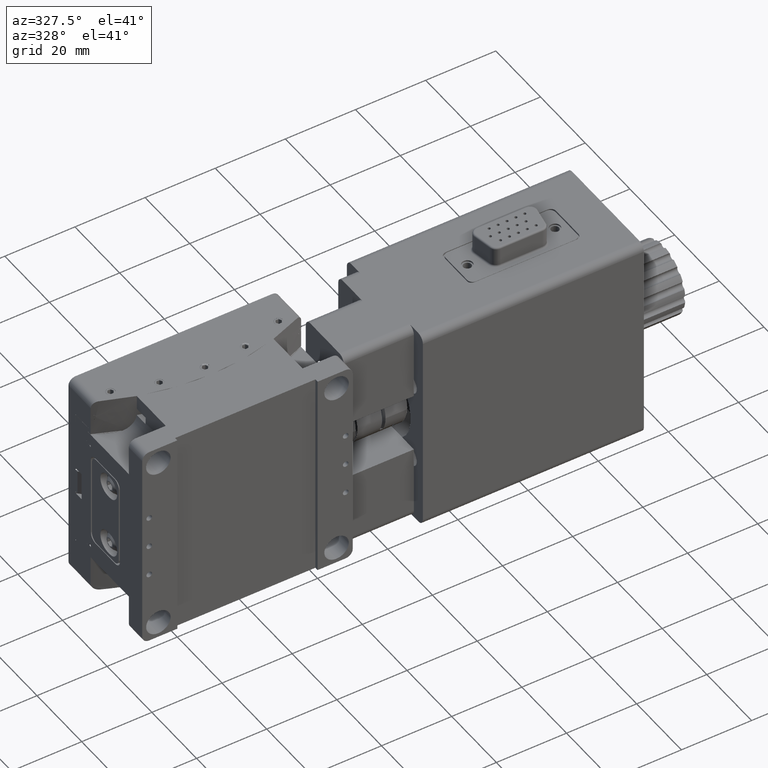
[diagram: clean part render]
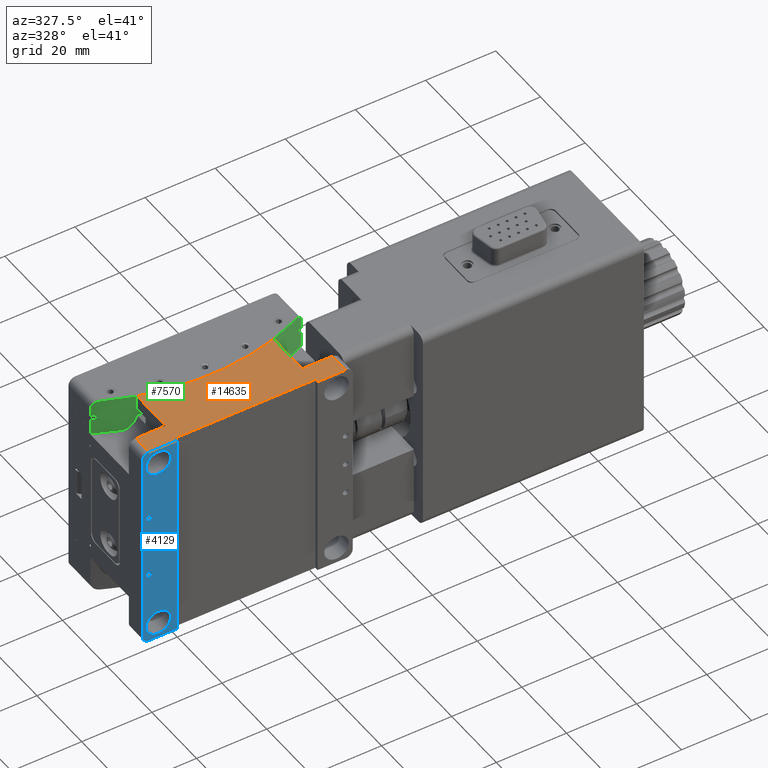
[diagram: same view with three faces highlighted in distinct colors, each labeled with its STEP entity id]
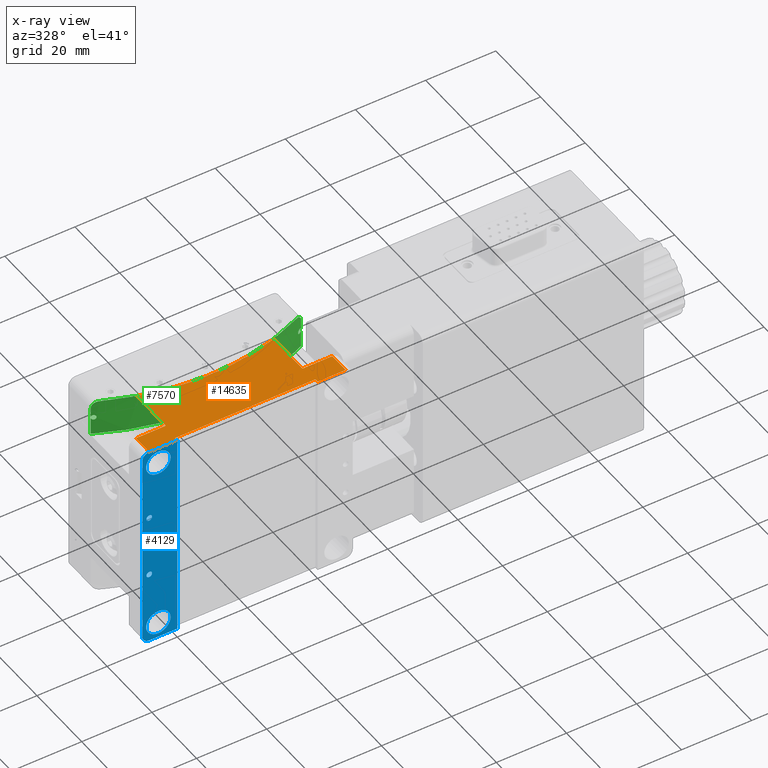
[diagram: x-ray of the same camera — body ghosted, the three highlighted faces saturated]
A machine part, auxiliary view with three faces highlighted in distinct colors.
The next image is the same camera in x-ray (body ghosted, the three faces saturated) — at least one of them is partly hidden behind the body in this view.
Their STEP definitions:

[orange] entity #14635 — the highlighted planar face has unit normal (-0, 0, -1).
#382 = LINE ( 'NONE', #12042, #2610 ) ;
#469 = CARTESIAN_POINT ( 'NONE',  ( -19.49999999999997900, 18.90046802042932900, 30.00000000000000700 ) ) ;
#707 = EDGE_CURVE ( 'NONE', #5361, #27594, #30916, .T. ) ;
#884 = CARTESIAN_POINT ( 'NONE',  ( 19.50000000000001400, 18.90046802042934400, 30.00000000000000700 ) ) ;
#953 = VECTOR ( 'NONE', #6119, 1000.000000000000000 ) ;
#972 = ORIENTED_EDGE ( 'NONE', *, *, #18743, .T. ) ;
#1050 = EDGE_CURVE ( 'NONE', #21466, #31952, #6455, .T. ) ;
#1525 = AXIS2_PLACEMENT_3D ( 'NONE', #8995, #35520, #35010 ) ;
#2416 = VERTEX_POINT ( 'NONE', #20171 ) ;
#2566 = VERTEX_POINT ( 'NONE', #7130 ) ;
#2610 = VECTOR ( 'NONE', #3528, 1000.000000000000000 ) ;
#2673 = CARTESIAN_POINT ( 'NONE',  ( 27.99999999999999600, 6.000000000000001800, 30.00000000000000000 ) ) ;
#3528 = DIRECTION ( 'NONE',  ( 1.000000000000000000, 0.0000000000000000000, -1.156482317317871500E-016 ) ) ;
#4584 = ORIENTED_EDGE ( 'NONE', *, *, #28121, .T. ) ;
#5106 = CARTESIAN_POINT ( 'NONE',  ( -19.99999999999999600, 1.000000000000000000, 30.00000000000000700 ) ) ;
#5361 = VERTEX_POINT ( 'NONE', #8591 ) ;
#5485 = DIRECTION ( 'NONE',  ( -0.0000000000000000000, -1.000000000000000000, -0.0000000000000000000 ) ) ;
#5603 = VERTEX_POINT ( 'NONE', #30534 ) ;
#5703 = VECTOR ( 'NONE', #27059, 1000.000000000000000 ) ;
#6067 = PLANE ( 'NONE',  #1525 ) ;
#6119 = DIRECTION ( 'NONE',  ( 1.000000000000000000, 0.0000000000000000000, -1.156482317317871500E-016 ) ) ;
#6455 = LINE ( 'NONE', #14446, #20051 ) ;
#6460 = LINE ( 'NONE', #28110, #36331 ) ;
#7130 = CARTESIAN_POINT ( 'NONE',  ( 19.99999999999999600, 0.0000000000000000000, 30.00000000000000700 ) ) ;
#7200 = FACE_OUTER_BOUND ( 'NONE', #26886, .T. ) ;
#7474 = ORIENTED_EDGE ( 'NONE', *, *, #34119, .F. ) ;
#8184 = ORIENTED_EDGE ( 'NONE', *, *, #36823, .F. ) ;
#8591 = CARTESIAN_POINT ( 'NONE',  ( 28.00000000000000000, 0.0000000000000000000, 30.00000000000000000 ) ) ;
#8995 = CARTESIAN_POINT ( 'NONE',  ( -29.99999999999999600, 33.00000000000000000, 30.00000000000000700 ) ) ;
#9443 = CARTESIAN_POINT ( 'NONE',  ( -29.99999999999999600, 6.000000000000001800, 30.00000000000000700 ) ) ;
#9775 = CARTESIAN_POINT ( 'NONE',  ( -19.49999999999999600, 33.00000000000000000, 30.00000000000000700 ) ) ;
#9817 = LINE ( 'NONE', #29186, #5703 ) ;
#10195 = VERTEX_POINT ( 'NONE', #34248 ) ;
#10698 = DIRECTION ( 'NONE',  ( -1.000000000000000000, 0.0000000000000000000, 1.156482317317871500E-016 ) ) ;
#10785 = LINE ( 'NONE', #34543, #21632 ) ;
#10959 = EDGE_CURVE ( 'NONE', #13818, #29576, #6460, .T. ) ;
#12042 = CARTESIAN_POINT ( 'NONE',  ( -29.99999999999999600, 0.0000000000000000000, 30.00000000000000700 ) ) ;
#13184 = ORIENTED_EDGE ( 'NONE', *, *, #24931, .T. ) ;
#13818 = VERTEX_POINT ( 'NONE', #20672 ) ;
#14218 = DIRECTION ( 'NONE',  ( 1.000000000000000000, 0.0000000000000000000, -1.156482317317871500E-016 ) ) ;
#14446 = CARTESIAN_POINT ( 'NONE',  ( 19.50000000000000000, 33.00000000000000000, 30.00000000000000000 ) ) ;
#14621 = VECTOR ( 'NONE', #32304, 1000.000000000000000 ) ;
#14635 = ADVANCED_FACE ( 'NONE', ( #7200 ), #6067, .F. ) ;
#14660 = ORIENTED_EDGE ( 'NONE', *, *, #24333, .T. ) ;
#14716 = EDGE_CURVE ( 'NONE', #2416, #5603, #382, .T. ) ;
#15515 = CARTESIAN_POINT ( 'NONE',  ( -29.99999999999999600, 1.000000000000000900, 30.00000000000000700 ) ) ;
#15970 = DIRECTION ( 'NONE',  ( 0.0000000000000000000, 1.000000000000000000, 0.0000000000000000000 ) ) ;
#16408 = CARTESIAN_POINT ( 'NONE',  ( -19.99999999999999600, 1.000000000000000000, 30.00000000000000700 ) ) ;
#17018 = CARTESIAN_POINT ( 'NONE',  ( 19.99999999999999600, 1.000000000000000000, 30.00000000000000700 ) ) ;
#17088 = VECTOR ( 'NONE', #5485, 1000.000000000000000 ) ;
#17327 = DIRECTION ( 'NONE',  ( -0.0000000000000000000, -0.0000000000000000000, -1.000000000000000000 ) ) ;
#17498 = DIRECTION ( 'NONE',  ( 0.0000000000000000000, -1.000000000000000000, 0.0000000000000000000 ) ) ;
#18276 = DIRECTION ( 'NONE',  ( -1.000000000000000000, 0.0000000000000000000, 1.156482317317871500E-016 ) ) ;
#18743 = EDGE_CURVE ( 'NONE', #10195, #2566, #27909, .T. ) ;
#19769 = VERTEX_POINT ( 'NONE', #469 ) ;
#20051 = VECTOR ( 'NONE', #17498, 1000.000000000000000 ) ;
#20171 = CARTESIAN_POINT ( 'NONE',  ( -27.99999999999999300, 0.0000000000000000000, 30.00000000000000700 ) ) ;
#20672 = CARTESIAN_POINT ( 'NONE',  ( -19.49999999999999600, 6.000000000000001800, 30.00000000000000700 ) ) ;
#21466 = VERTEX_POINT ( 'NONE', #884 ) ;
#21485 = ORIENTED_EDGE ( 'NONE', *, *, #1050, .F. ) ;
#21632 = VECTOR ( 'NONE', #14218, 1000.000000000000000 ) ;
#23033 = ORIENTED_EDGE ( 'NONE', *, *, #26105, .F. ) ;
#24259 = AXIS2_PLACEMENT_3D ( 'NONE', #32093, #17327, #29834 ) ;
#24333 = EDGE_CURVE ( 'NONE', #2566, #5361, #10785, .T. ) ;
#24931 = EDGE_CURVE ( 'NONE', #29576, #2416, #9817, .T. ) ;
#25302 = LINE ( 'NONE', #5106, #33442 ) ;
#25376 = LINE ( 'NONE', #9443, #953 ) ;
#26105 = EDGE_CURVE ( 'NONE', #13818, #19769, #34343, .T. ) ;
#26310 = EDGE_CURVE ( 'NONE', #29451, #5603, #25302, .T. ) ;
#26550 = ORIENTED_EDGE ( 'NONE', *, *, #26310, .F. ) ;
#26886 = EDGE_LOOP ( 'NONE', ( #23033, #35360, #13184, #33561, #26550, #8184, #972, #14660, #34042, #7474, #21485, #4584 ) ) ;
#27059 = DIRECTION ( 'NONE',  ( 0.0000000000000000000, -1.000000000000000000, 0.0000000000000000000 ) ) ;
#27102 = VECTOR ( 'NONE', #15970, 1000.000000000000000 ) ;
#27594 = VERTEX_POINT ( 'NONE', #2673 ) ;
#27909 = LINE ( 'NONE', #17018, #17088 ) ;
#28110 = CARTESIAN_POINT ( 'NONE',  ( -29.99999999999999600, 6.000000000000001800, 30.00000000000000700 ) ) ;
#28121 = EDGE_CURVE ( 'NONE', #21466, #19769, #33381, .T. ) ;
#28731 = VECTOR ( 'NONE', #18276, 1000.000000000000000 ) ;
#28860 = CARTESIAN_POINT ( 'NONE',  ( 19.49999999999999600, 6.000000000000001800, 30.00000000000000000 ) ) ;
#29186 = CARTESIAN_POINT ( 'NONE',  ( -27.99999999999999300, 33.00000000000000000, 30.00000000000000700 ) ) ;
#29451 = VERTEX_POINT ( 'NONE', #16408 ) ;
#29532 = CARTESIAN_POINT ( 'NONE',  ( 28.00000000000000000, 33.00000000000000000, 30.00000000000000000 ) ) ;
#29576 = VERTEX_POINT ( 'NONE', #29627 ) ;
#29627 = CARTESIAN_POINT ( 'NONE',  ( -27.99999999999999300, 6.000000000000001800, 30.00000000000000700 ) ) ;
#29834 = DIRECTION ( 'NONE',  ( -1.000000000000000000, 0.0000000000000000000, 0.0000000000000000000 ) ) ;
#30534 = CARTESIAN_POINT ( 'NONE',  ( -19.99999999999999600, 0.0000000000000000000, 30.00000000000000700 ) ) ;
#30916 = LINE ( 'NONE', #29532, #14621 ) ;
#31952 = VERTEX_POINT ( 'NONE', #28860 ) ;
#32093 = CARTESIAN_POINT ( 'NONE',  ( 0.0000000000000000000, 83.00000000000000000, 30.00000000000000700 ) ) ;
#32304 = DIRECTION ( 'NONE',  ( -0.0000000000000000000, 1.000000000000000000, -0.0000000000000000000 ) ) ;
#33381 = CIRCLE ( 'NONE', #24259, 67.00000000000001400 ) ;
#33442 = VECTOR ( 'NONE', #34055, 1000.000000000000000 ) ;
#33561 = ORIENTED_EDGE ( 'NONE', *, *, #14716, .T. ) ;
#34042 = ORIENTED_EDGE ( 'NONE', *, *, #707, .T. ) ;
#34055 = DIRECTION ( 'NONE',  ( -0.0000000000000000000, -1.000000000000000000, -0.0000000000000000000 ) ) ;
#34119 = EDGE_CURVE ( 'NONE', #31952, #27594, #25376, .T. ) ;
#34248 = CARTESIAN_POINT ( 'NONE',  ( 19.99999999999999600, 1.000000000000000000, 30.00000000000000700 ) ) ;
#34343 = LINE ( 'NONE', #9775, #27102 ) ;
#34543 = CARTESIAN_POINT ( 'NONE',  ( -29.99999999999999600, 0.0000000000000000000, 30.00000000000000700 ) ) ;
#35010 = DIRECTION ( 'NONE',  ( -1.000000000000000000, 0.0000000000000000000, 1.156482317317871500E-016 ) ) ;
#35360 = ORIENTED_EDGE ( 'NONE', *, *, #10959, .T. ) ;
#35520 = DIRECTION ( 'NONE',  ( -1.156482317317871500E-016, 0.0000000000000000000, -1.000000000000000000 ) ) ;
#36331 = VECTOR ( 'NONE', #10698, 1000.000000000000000 ) ;
#36460 = LINE ( 'NONE', #15515, #28731 ) ;
#36823 = EDGE_CURVE ( 'NONE', #10195, #29451, #36460, .T. ) ;

[blue] entity #4129 — the highlighted planar face has unit normal (-0, 1, 0).
#53 = EDGE_CURVE ( 'NONE', #6481, #4430, #5154, .T. ) ;
#241 = DIRECTION ( 'NONE',  ( 0.0000000000000000000, 0.0000000000000000000, -1.000000000000000000 ) ) ;
#261 = DIRECTION ( 'NONE',  ( 0.0000000000000000000, 0.0000000000000000000, -1.000000000000000000 ) ) ;
#369 = CARTESIAN_POINT ( 'NONE',  ( -25.39999999999999900, 3.061616997868381200E-017, 28.90000000000000200 ) ) ;
#382 = LINE ( 'NONE', #12042, #2610 ) ;
#597 = CIRCLE ( 'NONE', #2433, 0.7999999999999882800 ) ;
#1648 = ORIENTED_EDGE ( 'NONE', *, *, #3252, .T. ) ;
#1741 = CARTESIAN_POINT ( 'NONE',  ( -27.99999999999999600, -1.457329690985348000E-015, 9.000000000000000000 ) ) ;
#1764 = DIRECTION ( 'NONE',  ( -0.0000000000000000000, -1.000000000000000000, -0.0000000000000000000 ) ) ;
#2220 = DIRECTION ( 'NONE',  ( -0.0000000000000000000, -1.000000000000000000, -0.0000000000000000000 ) ) ;
#2362 = DIRECTION ( 'NONE',  ( 0.0000000000000000000, 0.0000000000000000000, -1.000000000000000000 ) ) ;
#2416 = VERTEX_POINT ( 'NONE', #20171 ) ;
#2433 = AXIS2_PLACEMENT_3D ( 'NONE', #9055, #3192, #25974 ) ;
#2523 = VERTEX_POINT ( 'NONE', #23961 ) ;
#2610 = VECTOR ( 'NONE', #3528, 1000.000000000000000 ) ;
#3192 = DIRECTION ( 'NONE',  ( -0.0000000000000000000, -1.000000000000000000, -0.0000000000000000000 ) ) ;
#3252 = EDGE_CURVE ( 'NONE', #2416, #4046, #4026, .T. ) ;
#3334 = CIRCLE ( 'NONE', #10803, 0.7999999999999882800 ) ;
#3528 = DIRECTION ( 'NONE',  ( 1.000000000000000000, 0.0000000000000000000, -1.156482317317871500E-016 ) ) ;
#3775 = AXIS2_PLACEMENT_3D ( 'NONE', #28018, #2220, #10726 ) ;
#3877 = CARTESIAN_POINT ( 'NONE',  ( -25.40000000000000200, 3.061616997868381200E-017, -28.89999999999998800 ) ) ;
#4026 = CIRCLE ( 'NONE', #23754, 2.000000000000001800 ) ;
#4046 = VERTEX_POINT ( 'NONE', #4185 ) ;
#4129 = ADVANCED_FACE ( 'NONE', ( #34561, #16128, #19220, #11521, #33674, #26492 ), #24579, .F. ) ;
#4185 = CARTESIAN_POINT ( 'NONE',  ( -29.99999999999999600, 0.0000000000000000000, 27.99999999999998900 ) ) ;
#4319 = VERTEX_POINT ( 'NONE', #25895 ) ;
#4430 = VERTEX_POINT ( 'NONE', #21377 ) ;
#4822 = ORIENTED_EDGE ( 'NONE', *, *, #31091, .F. ) ;
#4960 = EDGE_CURVE ( 'NONE', #2523, #4319, #8812, .T. ) ;
#5016 = DIRECTION ( 'NONE',  ( 0.0000000000000000000, 0.0000000000000000000, 1.000000000000000000 ) ) ;
#5082 = EDGE_LOOP ( 'NONE', ( #13947, #7344, #36138, #1648, #22022, #29534 ) ) ;
#5154 = CIRCLE ( 'NONE', #10855, 0.7999999999999882800 ) ;
#5256 = EDGE_CURVE ( 'NONE', #4430, #6481, #3334, .T. ) ;
#5603 = VERTEX_POINT ( 'NONE', #30534 ) ;
#5920 = DIRECTION ( 'NONE',  ( -0.0000000000000000000, -1.000000000000000000, -0.0000000000000000000 ) ) ;
#6188 = EDGE_LOOP ( 'NONE', ( #35996, #14010 ) ) ;
#6481 = VERTEX_POINT ( 'NONE', #9754 ) ;
#6670 = DIRECTION ( 'NONE',  ( -0.0000000000000000000, -1.000000000000000000, -0.0000000000000000000 ) ) ;
#6680 = CIRCLE ( 'NONE', #27270, 3.499999999999996000 ) ;
#6770 = AXIS2_PLACEMENT_3D ( 'NONE', #12799, #27167, #12397 ) ;
#7344 = ORIENTED_EDGE ( 'NONE', *, *, #15868, .T. ) ;
#7407 = CARTESIAN_POINT ( 'NONE',  ( -27.99999999999999600, -1.457329690985348000E-015, 0.7999999999999882800 ) ) ;
#7511 = EDGE_CURVE ( 'NONE', #19809, #32434, #34403, .T. ) ;
#7892 = AXIS2_PLACEMENT_3D ( 'NONE', #1741, #24902, #27778 ) ;
#8259 = CARTESIAN_POINT ( 'NONE',  ( -25.39999999999999900, 3.061616997868381200E-017, 21.90000000000000900 ) ) ;
#8812 = LINE ( 'NONE', #30859, #23286 ) ;
#9055 = CARTESIAN_POINT ( 'NONE',  ( -27.99999999999999600, -1.457329690985348000E-015, 0.0000000000000000000 ) ) ;
#9198 = DIRECTION ( 'NONE',  ( 0.0000000000000000000, 0.0000000000000000000, 1.000000000000000000 ) ) ;
#9582 = VERTEX_POINT ( 'NONE', #7407 ) ;
#9754 = CARTESIAN_POINT ( 'NONE',  ( -27.99999999999999600, -1.457329690985348000E-015, -8.200000000000011700 ) ) ;
#9965 = AXIS2_PLACEMENT_3D ( 'NONE', #19214, #19727, #2362 ) ;
#10017 = ORIENTED_EDGE ( 'NONE', *, *, #12398, .F. ) ;
#10122 = VERTEX_POINT ( 'NONE', #13565 ) ;
#10574 = VERTEX_POINT ( 'NONE', #35746 ) ;
#10726 = DIRECTION ( 'NONE',  ( 0.0000000000000000000, 0.0000000000000000000, -1.000000000000000000 ) ) ;
#10803 = AXIS2_PLACEMENT_3D ( 'NONE', #36327, #1764, #24808 ) ;
#10855 = AXIS2_PLACEMENT_3D ( 'NONE', #24013, #6670, #32704 ) ;
#10865 = CARTESIAN_POINT ( 'NONE',  ( -30.00000000000000000, 0.0000000000000000000, -30.00000000000000000 ) ) ;
#11521 = FACE_OUTER_BOUND ( 'NONE', #5082, .T. ) ;
#12042 = CARTESIAN_POINT ( 'NONE',  ( -29.99999999999999600, 0.0000000000000000000, 30.00000000000000700 ) ) ;
#12397 = DIRECTION ( 'NONE',  ( 0.0000000000000000000, 0.0000000000000000000, -1.000000000000000000 ) ) ;
#12398 = EDGE_CURVE ( 'NONE', #15146, #10574, #25799, .T. ) ;
#12456 = VECTOR ( 'NONE', #22516, 1000.000000000000000 ) ;
#12799 = CARTESIAN_POINT ( 'NONE',  ( -27.99999999999999600, -1.457329690985348000E-015, 9.000000000000000000 ) ) ;
#12828 = ORIENTED_EDGE ( 'NONE', *, *, #53, .F. ) ;
#13188 = EDGE_CURVE ( 'NONE', #32434, #19809, #33511, .T. ) ;
#13565 = CARTESIAN_POINT ( 'NONE',  ( -30.00000000000000000, 0.0000000000000000000, -27.99999999999999600 ) ) ;
#13947 = ORIENTED_EDGE ( 'NONE', *, *, #4960, .F. ) ;
#14010 = ORIENTED_EDGE ( 'NONE', *, *, #13188, .F. ) ;
#14391 = EDGE_LOOP ( 'NONE', ( #35616, #12828 ) ) ;
#14504 = ORIENTED_EDGE ( 'NONE', *, *, #15799, .F. ) ;
#14716 = EDGE_CURVE ( 'NONE', #2416, #5603, #382, .T. ) ;
#15146 = VERTEX_POINT ( 'NONE', #24143 ) ;
#15799 = EDGE_CURVE ( 'NONE', #32521, #20412, #6680, .T. ) ;
#15868 = EDGE_CURVE ( 'NONE', #2523, #5603, #25241, .T. ) ;
#15935 = VERTEX_POINT ( 'NONE', #24676 ) ;
#16104 = CARTESIAN_POINT ( 'NONE',  ( 0.0000000000000000000, 0.0000000000000000000, 0.0000000000000000000 ) ) ;
#16128 = FACE_BOUND ( 'NONE', #23958, .T. ) ;
#16260 = CIRCLE ( 'NONE', #30030, 2.000000000000001800 ) ;
#16556 = CARTESIAN_POINT ( 'NONE',  ( -27.99999999999999600, 0.0000000000000000000, -27.99999999999999600 ) ) ;
#16849 = CARTESIAN_POINT ( 'NONE',  ( -19.99999999999999600, 0.0000000000000000000, 30.00000000000000700 ) ) ;
#17402 = LINE ( 'NONE', #10865, #12456 ) ;
#17503 = EDGE_CURVE ( 'NONE', #10574, #15146, #27979, .T. ) ;
#17742 = EDGE_CURVE ( 'NONE', #10122, #4319, #16260, .T. ) ;
#18824 = ORIENTED_EDGE ( 'NONE', *, *, #17503, .F. ) ;
#19214 = CARTESIAN_POINT ( 'NONE',  ( -25.39999999999999900, 3.061616997868381200E-017, 25.40000000000000600 ) ) ;
#19220 = FACE_BOUND ( 'NONE', #6188, .T. ) ;
#19354 = VECTOR ( 'NONE', #22314, 1000.000000000000000 ) ;
#19393 = DIRECTION ( 'NONE',  ( 0.0000000000000000000, 0.0000000000000000000, -1.000000000000000000 ) ) ;
#19727 = DIRECTION ( 'NONE',  ( -0.0000000000000000000, -1.000000000000000000, -0.0000000000000000000 ) ) ;
#19759 = DIRECTION ( 'NONE',  ( -1.000000000000000000, -0.0000000000000000000, -0.0000000000000000000 ) ) ;
#19809 = VERTEX_POINT ( 'NONE', #3877 ) ;
#20171 = CARTESIAN_POINT ( 'NONE',  ( -27.99999999999999300, 0.0000000000000000000, 30.00000000000000700 ) ) ;
#20273 = CARTESIAN_POINT ( 'NONE',  ( -25.40000000000000200, 3.061616997868381200E-017, -25.39999999999999100 ) ) ;
#20412 = VERTEX_POINT ( 'NONE', #369 ) ;
#20701 = EDGE_LOOP ( 'NONE', ( #14504, #31591 ) ) ;
#20726 = EDGE_CURVE ( 'NONE', #10122, #4046, #17402, .T. ) ;
#21377 = CARTESIAN_POINT ( 'NONE',  ( -27.99999999999999600, -1.457329690985348000E-015, -9.799999999999988300 ) ) ;
#21404 = ORIENTED_EDGE ( 'NONE', *, *, #25296, .F. ) ;
#22022 = ORIENTED_EDGE ( 'NONE', *, *, #20726, .F. ) ;
#22314 = DIRECTION ( 'NONE',  ( -0.0000000000000000000, -0.0000000000000000000, 1.000000000000000000 ) ) ;
#22516 = DIRECTION ( 'NONE',  ( 5.782411586589357400E-017, 0.0000000000000000000, 1.000000000000000000 ) ) ;
#22572 = CARTESIAN_POINT ( 'NONE',  ( -25.40000000000000200, 3.061616997868381200E-017, -21.89999999999999500 ) ) ;
#23031 = CARTESIAN_POINT ( 'NONE',  ( -25.40000000000000200, 3.061616997868381200E-017, -25.39999999999999100 ) ) ;
#23286 = VECTOR ( 'NONE', #19759, 1000.000000000000000 ) ;
#23386 = CIRCLE ( 'NONE', #9965, 3.499999999999996000 ) ;
#23754 = AXIS2_PLACEMENT_3D ( 'NONE', #32687, #35326, #9198 ) ;
#23958 = EDGE_LOOP ( 'NONE', ( #21404, #4822 ) ) ;
#23961 = CARTESIAN_POINT ( 'NONE',  ( -19.99999999999999600, 0.0000000000000000000, -30.00000000000000700 ) ) ;
#24013 = CARTESIAN_POINT ( 'NONE',  ( -27.99999999999999600, -1.457329690985348000E-015, -9.000000000000000000 ) ) ;
#24143 = CARTESIAN_POINT ( 'NONE',  ( -27.99999999999999600, -1.457329690985348000E-015, 8.200000000000011700 ) ) ;
#24311 = AXIS2_PLACEMENT_3D ( 'NONE', #20273, #31858, #261 ) ;
#24579 = PLANE ( 'NONE',  #32824 ) ;
#24675 = EDGE_LOOP ( 'NONE', ( #10017, #18824 ) ) ;
#24676 = CARTESIAN_POINT ( 'NONE',  ( -27.99999999999999600, -1.457329690985348000E-015, -0.7999999999999882800 ) ) ;
#24808 = DIRECTION ( 'NONE',  ( 0.0000000000000000000, 0.0000000000000000000, -1.000000000000000000 ) ) ;
#24902 = DIRECTION ( 'NONE',  ( -0.0000000000000000000, -1.000000000000000000, -0.0000000000000000000 ) ) ;
#25241 = LINE ( 'NONE', #16849, #19354 ) ;
#25296 = EDGE_CURVE ( 'NONE', #15935, #9582, #36920, .T. ) ;
#25799 = CIRCLE ( 'NONE', #7892, 0.7999999999999882800 ) ;
#25895 = CARTESIAN_POINT ( 'NONE',  ( -27.99999999999999600, 0.0000000000000000000, -30.00000000000000000 ) ) ;
#25974 = DIRECTION ( 'NONE',  ( 0.0000000000000000000, 0.0000000000000000000, -1.000000000000000000 ) ) ;
#26492 = FACE_BOUND ( 'NONE', #24675, .T. ) ;
#27167 = DIRECTION ( 'NONE',  ( -0.0000000000000000000, -1.000000000000000000, -0.0000000000000000000 ) ) ;
#27270 = AXIS2_PLACEMENT_3D ( 'NONE', #31005, #36703, #19393 ) ;
#27778 = DIRECTION ( 'NONE',  ( 0.0000000000000000000, 0.0000000000000000000, -1.000000000000000000 ) ) ;
#27979 = CIRCLE ( 'NONE', #6770, 0.7999999999999882800 ) ;
#28018 = CARTESIAN_POINT ( 'NONE',  ( -27.99999999999999600, -1.457329690985348000E-015, 0.0000000000000000000 ) ) ;
#28935 = EDGE_CURVE ( 'NONE', #20412, #32521, #23386, .T. ) ;
#29534 = ORIENTED_EDGE ( 'NONE', *, *, #17742, .T. ) ;
#30030 = AXIS2_PLACEMENT_3D ( 'NONE', #16556, #36761, #5016 ) ;
#30534 = CARTESIAN_POINT ( 'NONE',  ( -19.99999999999999600, 0.0000000000000000000, 30.00000000000000700 ) ) ;
#30859 = CARTESIAN_POINT ( 'NONE',  ( -30.00000000000000000, 0.0000000000000000000, -30.00000000000000000 ) ) ;
#31005 = CARTESIAN_POINT ( 'NONE',  ( -25.39999999999999900, 3.061616997868381200E-017, 25.40000000000000600 ) ) ;
#31091 = EDGE_CURVE ( 'NONE', #9582, #15935, #597, .T. ) ;
#31591 = ORIENTED_EDGE ( 'NONE', *, *, #28935, .F. ) ;
#31858 = DIRECTION ( 'NONE',  ( -0.0000000000000000000, -1.000000000000000000, -0.0000000000000000000 ) ) ;
#32278 = AXIS2_PLACEMENT_3D ( 'NONE', #23031, #5920, #241 ) ;
#32434 = VERTEX_POINT ( 'NONE', #22572 ) ;
#32521 = VERTEX_POINT ( 'NONE', #8259 ) ;
#32687 = CARTESIAN_POINT ( 'NONE',  ( -27.99999999999999300, 0.0000000000000000000, 28.00000000000000400 ) ) ;
#32704 = DIRECTION ( 'NONE',  ( 0.0000000000000000000, 0.0000000000000000000, -1.000000000000000000 ) ) ;
#32824 = AXIS2_PLACEMENT_3D ( 'NONE', #16104, #33264, #36177 ) ;
#33264 = DIRECTION ( 'NONE',  ( -0.0000000000000000000, 1.000000000000000000, 0.0000000000000000000 ) ) ;
#33511 = CIRCLE ( 'NONE', #32278, 3.499999999999996000 ) ;
#33674 = FACE_BOUND ( 'NONE', #20701, .T. ) ;
#34403 = CIRCLE ( 'NONE', #24311, 3.499999999999996000 ) ;
#34561 = FACE_BOUND ( 'NONE', #14391, .T. ) ;
#35326 = DIRECTION ( 'NONE',  ( 0.0000000000000000000, -1.000000000000000000, -0.0000000000000000000 ) ) ;
#35616 = ORIENTED_EDGE ( 'NONE', *, *, #5256, .F. ) ;
#35746 = CARTESIAN_POINT ( 'NONE',  ( -27.99999999999999600, -1.457329690985348000E-015, 9.799999999999988300 ) ) ;
#35996 = ORIENTED_EDGE ( 'NONE', *, *, #7511, .F. ) ;
#36138 = ORIENTED_EDGE ( 'NONE', *, *, #14716, .F. ) ;
#36177 = DIRECTION ( 'NONE',  ( 0.0000000000000000000, -0.0000000000000000000, 1.000000000000000000 ) ) ;
#36327 = CARTESIAN_POINT ( 'NONE',  ( -27.99999999999999600, -1.457329690985348000E-015, -9.000000000000000000 ) ) ;
#36703 = DIRECTION ( 'NONE',  ( -0.0000000000000000000, -1.000000000000000000, -0.0000000000000000000 ) ) ;
#36761 = DIRECTION ( 'NONE',  ( 0.0000000000000000000, -1.000000000000000000, -0.0000000000000000000 ) ) ;
#36920 = CIRCLE ( 'NONE', #3775, 0.7999999999999882800 ) ;

[green] entity #7570 — the highlighted cylindrical surface (partial cylindrical patch) has radius 67 mm, axis along (0, 0, 1).
#23 = VECTOR ( 'NONE', #25765, 1000.000000000000000 ) ;
#159 = LINE ( 'NONE', #37086, #31363 ) ;
#1701 = CARTESIAN_POINT ( 'NONE',  ( 28.74010799928338100, 22.47722583861877500, 24.99975245554603700 ) ) ;
#2089 = VERTEX_POINT ( 'NONE', #26106 ) ;
#2130 = EDGE_CURVE ( 'NONE', #2089, #16319, #7780, .T. ) ;
#2421 = DIRECTION ( 'NONE',  ( -0.0000000000000000000, -0.0000000000000000000, -1.000000000000000000 ) ) ;
#2503 = CARTESIAN_POINT ( 'NONE',  ( -28.49668960439224500, 22.36208214200064900, 29.94137749395221000 ) ) ;
#2580 = CARTESIAN_POINT ( 'NONE',  ( 29.93044035753730700, 23.05681460931606000, 25.36621698941298700 ) ) ;
#3053 = CARTESIAN_POINT ( 'NONE',  ( 29.99999999999992200, 23.09173679699911100, 28.00000000000000400 ) ) ;
#3170 = CARTESIAN_POINT ( 'NONE',  ( 29.88684212182726400, 23.03517390885269100, 28.67697761211583800 ) ) ;
#3265 = ORIENTED_EDGE ( 'NONE', *, *, #32009, .T. ) ;
#3734 = CARTESIAN_POINT ( 'NONE',  ( -2.983724378680108200E-014, 82.99999999999980100, 19.80000000000000400 ) ) ;
#3862 = DIRECTION ( 'NONE',  ( 0.0000000000000000000, 0.0000000000000000000, 1.000000000000000000 ) ) ;
#4041 = CARTESIAN_POINT ( 'NONE',  ( 28.74010799928338100, 22.47722583861877500, 24.99975245554603700 ) ) ;
#4603 = CARTESIAN_POINT ( 'NONE',  ( 27.99999999999992500, 22.13128882586696000, 30.00000000000001100 ) ) ;
#4623 = CIRCLE ( 'NONE', #34662, 67.00000000000001400 ) ;
#5312 = CARTESIAN_POINT ( 'NONE',  ( -29.98558253197714800, 23.08451098805781900, 28.27601974000583200 ) ) ;
#5523 = CARTESIAN_POINT ( 'NONE',  ( 29.99999999999991500, 23.09173679699911800, 5.204170427930420500E-015 ) ) ;
#5845 = CARTESIAN_POINT ( 'NONE',  ( 29.55890931959414300, 22.87281766290635000, 29.25984066733969500 ) ) ;
#5859 = CARTESIAN_POINT ( 'NONE',  ( 28.80842731042385900, 22.50957805622181600, 25.36528581495035100 ) ) ;
#6101 = CARTESIAN_POINT ( 'NONE',  ( 29.77790950505227500, 22.98100462632279700, 28.92601818116731100 ) ) ;
#6766 = EDGE_CURVE ( 'NONE', #35654, #35258, #4623, .T. ) ;
#7166 = CARTESIAN_POINT ( 'NONE',  ( -29.87274642594474000, 23.02814666376818300, 25.43044458486475200 ) ) ;
#7388 = CARTESIAN_POINT ( 'NONE',  ( 29.98214070740144500, 23.08278650319386200, 24.81675030968007400 ) ) ;
#7409 = CARTESIAN_POINT ( 'NONE',  ( -29.28913897530036400, 22.74093699487783100, 25.70004839669468700 ) ) ;
#7522 = CARTESIAN_POINT ( 'NONE',  ( 29.69922467386439600, 22.94192194037170700, 24.37583148870961500 ) ) ;
#7570 = ADVANCED_FACE ( 'NONE', ( #27202, #8204, #35793 ), #29437, .T. ) ;
#7727 = LINE ( 'NONE', #5523, #23 ) ;
#7780 = CIRCLE ( 'NONE', #9185, 67.00000000000002800 ) ;
#8011 = EDGE_CURVE ( 'NONE', #16319, #17342, #7727, .T. ) ;
#8204 = FACE_OUTER_BOUND ( 'NONE', #27210, .T. ) ;
#8305 = CARTESIAN_POINT ( 'NONE',  ( 28.98291420963194300, 22.59308945429993500, 25.55909837626865100 ) ) ;
#8394 = DIRECTION ( 'NONE',  ( 1.000000000000000000, -2.071311613106634400E-016, 0.0000000000000000000 ) ) ;
#8490 = B_SPLINE_CURVE_WITH_KNOTS ( 'NONE', 3,
 ( #35296, #9158, #20548, #23447, #17504, #29357, #5845, #17622, #6101, #3170, #26314, #23702, #11681, #3053 ),
 .UNSPECIFIED., .F., .F.,
 ( 4, 2, 2, 2, 2, 2, 4 ),
 ( 4.906538933386797400E-018, 0.0008240622300633043200, 0.001648124460126603900, 0.002060155575158251500, 0.002472186690189899500, 0.002884217805221547100, 0.003296248920253195100 ),
 .UNSPECIFIED. ) ;
#9158 = CARTESIAN_POINT ( 'NONE',  ( 28.25308038758572200, 22.24770743759227500, 30.00000000000001400 ) ) ;
#9185 = AXIS2_PLACEMENT_3D ( 'NONE', #3734, #3862, #35860 ) ;
#9891 = CARTESIAN_POINT ( 'NONE',  ( -29.99841962456137900, 23.09094542534719700, 24.81501701538242700 ) ) ;
#10225 = ORIENTED_EDGE ( 'NONE', *, *, #6766, .F. ) ;
#10241 = ORIENTED_EDGE ( 'NONE', *, *, #36930, .T. ) ;
#10258 = CARTESIAN_POINT ( 'NONE',  ( -29.53616772506446600, 22.86141934374225900, 24.29981200579633000 ) ) ;
#10316 = CARTESIAN_POINT ( 'NONE',  ( 29.28913897530021200, 22.74093699487780300, 24.29995160330534500 ) ) ;
#10337 = CARTESIAN_POINT ( 'NONE',  ( -28.98437960134181400, 22.59379160552739000, 25.56053137532183000 ) ) ;
#10383 = CARTESIAN_POINT ( 'NONE',  ( -28.80842731042395100, 22.50957805622184100, 24.63471418504967400 ) ) ;
#10566 = CARTESIAN_POINT ( 'NONE',  ( -29.99841962456137900, 23.09094542534719700, 25.09249149230879900 ) ) ;
#10743 = CARTESIAN_POINT ( 'NONE',  ( -2.983724378680108200E-014, 82.99999999999980100, 30.00000000000001100 ) ) ;
#10797 = ORIENTED_EDGE ( 'NONE', *, *, #22673, .F. ) ;
#10893 = CARTESIAN_POINT ( 'NONE',  ( -28.61889499854453700, 22.41967506811004500, 29.90602772937218000 ) ) ;
#11193 = ORIENTED_EDGE ( 'NONE', *, *, #31390, .T. ) ;
#11433 = B_SPLINE_CURVE_WITH_KNOTS ( 'NONE', 3,
 ( #24732, #33655, #7388, #36202, #27963, #7522, #30645, #10316, #27488, #16368, #27731, #33540, #16251, #36328, #13115, #1701 ),
 .UNSPECIFIED., .F., .F.,
 ( 4, 2, 2, 2, 2, 2, 2, 4 ),
 ( 0.0000000000000000000, 0.0002735359897828009000, 0.0005470719795656018000, 0.001094143959131217500, 0.001367679948914022800, 0.001641215938696828500, 0.001914751928479634000, 0.002188287918262439300 ),
 .UNSPECIFIED. ) ;
#11681 = CARTESIAN_POINT ( 'NONE',  ( 29.99999999999992900, 23.09173679699911100, 28.13976748986331000 ) ) ;
#12214 = B_SPLINE_CURVE_WITH_KNOTS ( 'NONE', 3,
 ( #19088, #27177, #10383, #13061, #15829, #36030, #35898, #10258, #12809, #18724, #9891, #36271 ),
 .UNSPECIFIED., .F., .F.,
 ( 4, 2, 2, 2, 2, 4 ),
 ( 0.002188287918262508300, 0.002735359897828137500, 0.003008895887610946700, 0.003282431877393756300, 0.003829503856959388600, 0.004376575836525020900 ),
 .UNSPECIFIED. ) ;
#12678 = EDGE_LOOP ( 'NONE', ( #10241, #3265 ) ) ;
#12809 = CARTESIAN_POINT ( 'NONE',  ( -29.69874258560022900, 22.94168314369557400, 24.37547709222747400 ) ) ;
#13061 = CARTESIAN_POINT ( 'NONE',  ( -28.98291420963203200, 22.59308945429994600, 24.44090162373137400 ) ) ;
#13115 = CARTESIAN_POINT ( 'NONE',  ( 28.74013718686286400, 22.47723969875982400, 24.90838844302513500 ) ) ;
#13501 = CARTESIAN_POINT ( 'NONE',  ( -29.53532508182982500, 22.86101167304604700, 25.69990291038381300 ) ) ;
#13557 = B_SPLINE_CURVE_WITH_KNOTS ( 'NONE', 3,
 ( #28989, #25623, #5859, #8305, #14102, #26089, #34324, #17031, #19942, #2580, #22848, #25736 ),
 .UNSPECIFIED., .F., .F.,
 ( 4, 2, 2, 2, 2, 4 ),
 ( 0.002188287918262439300, 0.002735359897828050800, 0.003008895887610860400, 0.003282431877393669600, 0.003829503856959279300, 0.004376575836524889000 ),
 .UNSPECIFIED. ) ;
#13605 = CARTESIAN_POINT ( 'NONE',  ( -28.74010799928347700, 22.47722583861880000, 25.00024754445400500 ) ) ;
#13922 = CARTESIAN_POINT ( 'NONE',  ( -30.00000000000007500, 23.09173679699911800, 28.00000000000000400 ) ) ;
#14102 = CARTESIAN_POINT ( 'NONE',  ( 29.05297696820997500, 22.62673031775059900, 25.61123593081895000 ) ) ;
#14547 = CARTESIAN_POINT ( 'NONE',  ( -2.983724378680108200E-014, 82.99999999999980100, 6.938893903907226800E-015 ) ) ;
#14742 = ORIENTED_EDGE ( 'NONE', *, *, #22170, .T. ) ;
#14812 = VERTEX_POINT ( 'NONE', #21524 ) ;
#14833 = EDGE_CURVE ( 'NONE', #22646, #35654, #15440, .T. ) ;
#15096 = CARTESIAN_POINT ( 'NONE',  ( -30.00000000000007500, 23.09173679699911800, 28.00000000000000400 ) ) ;
#15440 = B_SPLINE_CURVE_WITH_KNOTS ( 'NONE', 3,
 ( #13922, #34129, #5312, #28540, #37158, #25307, #19483, #22542, #22656, #16821, #22777, #10893, #2503, #22414, #28308, #37042 ),
 .UNSPECIFIED., .F., .F.,
 ( 4, 2, 2, 2, 2, 2, 2, 4 ),
 ( 0.0000000000000000000, 0.0004120018489361857800, 0.0008240036978723715600, 0.001648007395744741200, 0.002060009244680929400, 0.002472011093617117600, 0.002884012942553306300, 0.003296014791489494500 ),
 .UNSPECIFIED. ) ;
#15829 = CARTESIAN_POINT ( 'NONE',  ( -29.05297696821005700, 22.62673031775062400, 24.38876406918106500 ) ) ;
#15838 = AXIS2_PLACEMENT_3D ( 'NONE', #14547, #34397, #8394 ) ;
#15893 = EDGE_CURVE ( 'NONE', #17895, #22278, #12214, .T. ) ;
#16028 = CARTESIAN_POINT ( 'NONE',  ( 29.99999999999991500, 23.09173679699911800, 19.80000000000000400 ) ) ;
#16153 = CARTESIAN_POINT ( 'NONE',  ( -29.05394354210772800, 22.62719530142347700, 25.61186294391334100 ) ) ;
#16251 = CARTESIAN_POINT ( 'NONE',  ( 28.82004807202279700, 22.51524104688964900, 24.64712947677531900 ) ) ;
#16319 = VERTEX_POINT ( 'NONE', #16028 ) ;
#16368 = CARTESIAN_POINT ( 'NONE',  ( 29.05394354210758600, 22.62719530142342000, 24.38813705608668100 ) ) ;
#16376 = B_SPLINE_CURVE_WITH_KNOTS ( 'NONE', 3,
 ( #33180, #10566, #27391, #24756, #7166, #30778, #13501, #7409, #27627, #16153, #10337, #30540, #33431, #36346, #19036, #13605 ),
 .UNSPECIFIED., .F., .F.,
 ( 4, 2, 2, 2, 2, 2, 2, 4 ),
 ( 0.0000000000000000000, 0.0002735359897828174900, 0.0005470719795656349800, 0.001094143959131265800, 0.001367679948914076300, 0.001641215938696887100, 0.001914751928479698000, 0.002188287918262508300 ),
 .UNSPECIFIED. ) ;
#16821 = CARTESIAN_POINT ( 'NONE',  ( -28.96659077314244300, 22.58517630588303900, 29.75556844506181500 ) ) ;
#17031 = CARTESIAN_POINT ( 'NONE',  ( 29.53616772506437400, 22.86141934374224500, 25.70018799420369500 ) ) ;
#17342 = VERTEX_POINT ( 'NONE', #25897 ) ;
#17504 = CARTESIAN_POINT ( 'NONE',  ( 29.18838743378703900, 22.69176903922127400, 29.62987043461111000 ) ) ;
#17561 = ORIENTED_EDGE ( 'NONE', *, *, #8011, .T. ) ;
#17622 = CARTESIAN_POINT ( 'NONE',  ( 29.71085746182594500, 22.94775503908985900, 29.04420473045987100 ) ) ;
#17895 = VERTEX_POINT ( 'NONE', #29260 ) ;
#18724 = CARTESIAN_POINT ( 'NONE',  ( -29.93044035753741000, 23.05681460931608500, 24.63378301058703100 ) ) ;
#19036 = CARTESIAN_POINT ( 'NONE',  ( -28.74013718686296000, 22.47723969875985300, 25.09161155697491800 ) ) ;
#19088 = CARTESIAN_POINT ( 'NONE',  ( -28.74010799928347700, 22.47722583861880000, 25.00024754445400500 ) ) ;
#19425 = VERTEX_POINT ( 'NONE', #4041 ) ;
#19483 = CARTESIAN_POINT ( 'NONE',  ( -29.56732046922498500, 22.87664895852474000, 29.26922805289527200 ) ) ;
#19942 = CARTESIAN_POINT ( 'NONE',  ( 29.69874258560015800, 22.94168314369556000, 25.62452290777251600 ) ) ;
#20548 = CARTESIAN_POINT ( 'NONE',  ( 28.49894747894721900, 22.36272888206154300, 29.95341867842382700 ) ) ;
#21524 = CARTESIAN_POINT ( 'NONE',  ( 29.99841962456122600, 23.09094542534718600, 25.00000000000000700 ) ) ;
#22170 = EDGE_CURVE ( 'NONE', #22278, #17895, #16376, .T. ) ;
#22278 = VERTEX_POINT ( 'NONE', #23185 ) ;
#22414 = CARTESIAN_POINT ( 'NONE',  ( -28.25092108061944500, 22.24719052867459700, 29.98813624996784500 ) ) ;
#22542 = CARTESIAN_POINT ( 'NONE',  ( -29.28524801527762400, 22.73902428826529500, 29.53785430555116800 ) ) ;
#22646 = VERTEX_POINT ( 'NONE', #15096 ) ;
#22656 = CARTESIAN_POINT ( 'NONE',  ( -29.18208676429664200, 22.68897186176478400, 29.61832912897703100 ) ) ;
#22673 = EDGE_CURVE ( 'NONE', #35258, #17342, #8490, .T. ) ;
#22777 = CARTESIAN_POINT ( 'NONE',  ( -28.85390381373333600, 22.53125473024174900, 29.81295918355897400 ) ) ;
#22848 = CARTESIAN_POINT ( 'NONE',  ( 29.99841962456123000, 23.09094542534718300, 25.18498298461758400 ) ) ;
#23163 = ORIENTED_EDGE ( 'NONE', *, *, #15893, .T. ) ;
#23185 = CARTESIAN_POINT ( 'NONE',  ( -29.99841962456137900, 23.09094542534719400, 25.00000000000000700 ) ) ;
#23447 = CARTESIAN_POINT ( 'NONE',  ( 28.97234784069960900, 22.58748708557412900, 29.76616329840975100 ) ) ;
#23643 = ORIENTED_EDGE ( 'NONE', *, *, #14833, .F. ) ;
#23702 = CARTESIAN_POINT ( 'NONE',  ( 29.98509282291025400, 23.08426573520072000, 28.27961395191015000 ) ) ;
#24732 = CARTESIAN_POINT ( 'NONE',  ( 29.99841962456122600, 23.09094542534718600, 25.00000000000000700 ) ) ;
#24756 = CARTESIAN_POINT ( 'NONE',  ( -29.91927883228459000, 23.05137208595783000, 25.35279300970374500 ) ) ;
#25169 = DIRECTION ( 'NONE',  ( 0.0000000000000000000, 0.0000000000000000000, 1.000000000000000000 ) ) ;
#25181 = ORIENTED_EDGE ( 'NONE', *, *, #2130, .T. ) ;
#25307 = CARTESIAN_POINT ( 'NONE',  ( -29.72493485524686100, 22.95466034873302500, 29.04765215088992400 ) ) ;
#25623 = CARTESIAN_POINT ( 'NONE',  ( 28.74004962412443500, 22.47719811833669100, 25.18248048058784500 ) ) ;
#25736 = CARTESIAN_POINT ( 'NONE',  ( 29.99841962456122600, 23.09094542534718600, 25.00000000000000700 ) ) ;
#25765 = DIRECTION ( 'NONE',  ( 0.0000000000000000000, 0.0000000000000000000, 1.000000000000000000 ) ) ;
#25897 = CARTESIAN_POINT ( 'NONE',  ( 29.99999999999992200, 23.09173679699911100, 28.00000000000000400 ) ) ;
#26089 = CARTESIAN_POINT ( 'NONE',  ( 29.20540953873840100, 22.70032158862270300, 25.68157685758355100 ) ) ;
#26106 = CARTESIAN_POINT ( 'NONE',  ( -30.00000000000007500, 23.09173679699911800, 19.80000000000000400 ) ) ;
#26314 = CARTESIAN_POINT ( 'NONE',  ( 29.92840565353870700, 23.05592990857377700, 28.54774913333808300 ) ) ;
#27177 = CARTESIAN_POINT ( 'NONE',  ( -28.74004962412452400, 22.47719811833670500, 24.81751951941220800 ) ) ;
#27202 = FACE_BOUND ( 'NONE', #27329, .T. ) ;
#27210 = EDGE_LOOP ( 'NONE', ( #11193, #25181, #17561, #10797, #10225, #23643 ) ) ;
#27329 = EDGE_LOOP ( 'NONE', ( #14742, #23163 ) ) ;
#27391 = CARTESIAN_POINT ( 'NONE',  ( -29.98214070740155200, 23.08278650319389400, 25.18324969031994000 ) ) ;
#27488 = CARTESIAN_POINT ( 'NONE',  ( 29.20658406128963600, 22.70089030515237700, 24.31806469121523100 ) ) ;
#27627 = CARTESIAN_POINT ( 'NONE',  ( -29.20658406128977400, 22.70089030515242700, 25.68193530878478400 ) ) ;
#27731 = CARTESIAN_POINT ( 'NONE',  ( 28.98437960134165800, 22.59379160552735400, 24.43946862467819900 ) ) ;
#27963 = CARTESIAN_POINT ( 'NONE',  ( 29.87274642594461200, 23.02814666376814400, 24.56955541513529100 ) ) ;
#28308 = CARTESIAN_POINT ( 'NONE',  ( -28.12633911543542500, 22.18940563438733400, 30.00000000000000400 ) ) ;
#28540 = CARTESIAN_POINT ( 'NONE',  ( -29.92948499035440000, 23.05646897675839600, 28.54388653243368500 ) ) ;
#28989 = CARTESIAN_POINT ( 'NONE',  ( 28.74010799928338100, 22.47722583861877500, 24.99975245554603700 ) ) ;
#29260 = CARTESIAN_POINT ( 'NONE',  ( -28.74010799928347700, 22.47722583861880000, 25.00024754445400500 ) ) ;
#29357 = CARTESIAN_POINT ( 'NONE',  ( 29.47335425646016600, 22.83080057434624900, 29.35882773616496500 ) ) ;
#29437 = CYLINDRICAL_SURFACE ( 'NONE', #15838, 67.00000000000002800 ) ;
#30540 = CARTESIAN_POINT ( 'NONE',  ( -28.86644804897521900, 22.53734664681884700, 25.42992528221572700 ) ) ;
#30645 = CARTESIAN_POINT ( 'NONE',  ( 29.53532508182970100, 22.86101167304602600, 24.30009708961619100 ) ) ;
#30778 = CARTESIAN_POINT ( 'NONE',  ( -29.69922467386451400, 22.94192194037174900, 25.62416851129042100 ) ) ;
#31363 = VECTOR ( 'NONE', #2421, 1000.000000000000000 ) ;
#31390 = EDGE_CURVE ( 'NONE', #22646, #2089, #159, .T. ) ;
#32009 = EDGE_CURVE ( 'NONE', #19425, #14812, #13557, .T. ) ;
#33180 = CARTESIAN_POINT ( 'NONE',  ( -29.99841962456137900, 23.09094542534719400, 25.00000000000000700 ) ) ;
#33431 = CARTESIAN_POINT ( 'NONE',  ( -28.82004807202290000, 22.51524104688965600, 25.35287052322472700 ) ) ;
#33540 = CARTESIAN_POINT ( 'NONE',  ( 28.86644804897506200, 22.53734664681882200, 24.57007471778429400 ) ) ;
#33655 = CARTESIAN_POINT ( 'NONE',  ( 29.99841962456121500, 23.09094542534718300, 24.90750850769121200 ) ) ;
#34129 = CARTESIAN_POINT ( 'NONE',  ( -30.00000000000007800, 23.09173679699911800, 28.13942094501185700 ) ) ;
#34324 = CARTESIAN_POINT ( 'NONE',  ( 29.28725358169134600, 22.74001908853756900, 25.69990545646427200 ) ) ;
#34397 = DIRECTION ( 'NONE',  ( 0.0000000000000000000, 0.0000000000000000000, 1.000000000000000000 ) ) ;
#34662 = AXIS2_PLACEMENT_3D ( 'NONE', #10743, #25169, #37017 ) ;
#35258 = VERTEX_POINT ( 'NONE', #4603 ) ;
#35296 = CARTESIAN_POINT ( 'NONE',  ( 27.99999999999992500, 22.13128882586696000, 30.00000000000001100 ) ) ;
#35654 = VERTEX_POINT ( 'NONE', #35670 ) ;
#35670 = CARTESIAN_POINT ( 'NONE',  ( -28.00000000000007500, 22.13128882586696700, 30.00000000000001100 ) ) ;
#35793 = FACE_BOUND ( 'NONE', #12678, .T. ) ;
#35860 = DIRECTION ( 'NONE',  ( 1.000000000000000000, -2.071311613106634400E-016, 0.0000000000000000000 ) ) ;
#35898 = CARTESIAN_POINT ( 'NONE',  ( -29.28725358169144900, 22.74001908853759000, 24.30009454353576000 ) ) ;
#36030 = CARTESIAN_POINT ( 'NONE',  ( -29.20540953873848300, 22.70032158862271700, 24.31842314241647400 ) ) ;
#36202 = CARTESIAN_POINT ( 'NONE',  ( 29.91927883228449000, 23.05137208595780200, 24.64720699029625500 ) ) ;
#36271 = CARTESIAN_POINT ( 'NONE',  ( -29.99841962456137900, 23.09094542534719400, 25.00000000000000700 ) ) ;
#36328 = CARTESIAN_POINT ( 'NONE',  ( 28.75654352192217900, 22.48502300123247000, 24.81678534355720300 ) ) ;
#36346 = CARTESIAN_POINT ( 'NONE',  ( -28.75654352192229300, 22.48502300123249900, 25.18321465644285700 ) ) ;
#36930 = EDGE_CURVE ( 'NONE', #14812, #19425, #11433, .T. ) ;
#37017 = DIRECTION ( 'NONE',  ( 1.000000000000000000, -2.071311613106634900E-016, 0.0000000000000000000 ) ) ;
#37042 = CARTESIAN_POINT ( 'NONE',  ( -28.00000000000007500, 22.13128882586696700, 30.00000000000001100 ) ) ;
#37086 = CARTESIAN_POINT ( 'NONE',  ( -30.00000000000007500, 23.09173679699911800, 6.938893903907226800E-015 ) ) ;
#37158 = CARTESIAN_POINT ( 'NONE',  ( -29.88703254593501100, 23.03526930691328200, 28.67627804312256500 ) ) ;